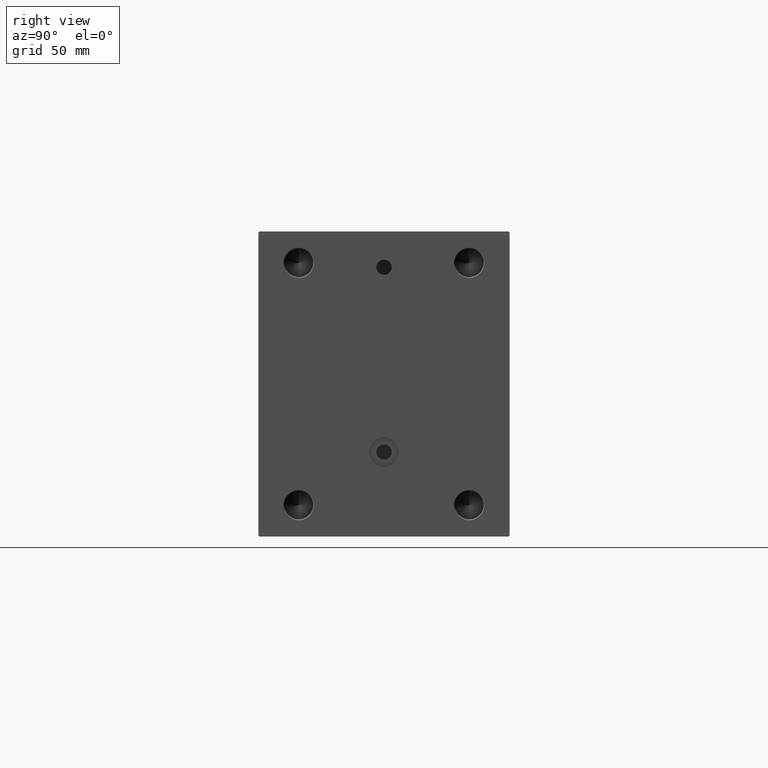
[diagram: clean part render]
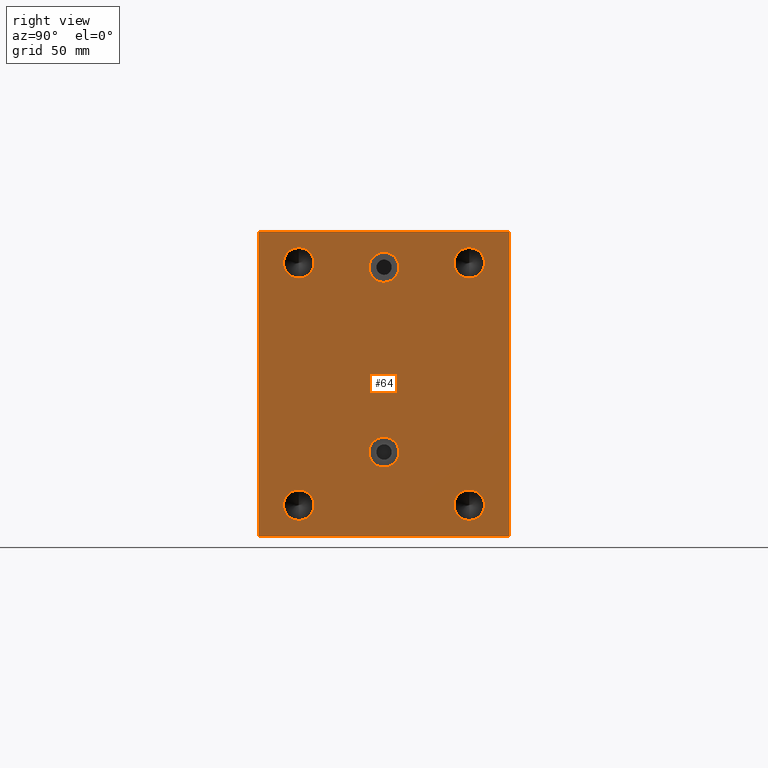
[diagram: same view with one face highlighted and labeled with its STEP entity id]
A machine part, right view. The second image highlights one B-rep face of the part: STEP entity #64.
In plain terms, the highlighted planar face has unit normal (1, 0, 0).
Its self-contained STEP definition (entity closure, byte-faithful):
#64 = ADVANCED_FACE ( 'NONE', ( #10120, #42099, #10347, #28656, #35827, #18213, #27744 ), #21006, .T. ) ;
#184 = CARTESIAN_POINT ( 'NONE',  ( 255.0000000000000000, 77.25000000000099476, -77.24999999999884892 ) ) ;
#747 = CARTESIAN_POINT ( 'NONE',  ( 255.0000000000000000, -47.50000000000000000, 67.49999999999998579 ) ) ;
#1363 = DIRECTION ( 'NONE',  ( 0.000000000000000000, 0.000000000000000000, -1.000000000000000000 ) ) ;
#1552 = CIRCLE ( 'NONE', #22294, 8.500000000000007105 ) ;
#1582 = CARTESIAN_POINT ( 'NONE',  ( 255.0000000000000000, 70.00000000000001421, -84.50000000000002842 ) ) ;
#1793 = EDGE_CURVE ( 'NONE', #21016, #2088, #44489, .T. ) ;
#2088 = VERTEX_POINT ( 'NONE', #10882 ) ;
#2323 = VERTEX_POINT ( 'NONE', #35851 ) ;
#2375 = CIRCLE ( 'NONE', #43066, 8.500000000000007105 ) ;
#2508 = EDGE_CURVE ( 'NONE', #39429, #32883, #26798, .T. ) ;
#2566 = EDGE_CURVE ( 'NONE', #3292, #30460, #1552, .T. ) ;
#2641 = EDGE_CURVE ( 'NONE', #40918, #26775, #20742, .T. ) ;
#3292 = VERTEX_POINT ( 'NONE', #19172 ) ;
#3398 = VERTEX_POINT ( 'NONE', #37466 ) ;
#3608 = DIRECTION ( 'NONE',  ( 0.000000000000000000, -8.163404592832031500E-17, 1.000000000000000000 ) ) ;
#4068 = AXIS2_PLACEMENT_3D ( 'NONE', #42324, #42095, #21690 ) ;
#4218 = EDGE_CURVE ( 'NONE', #11736, #39429, #4321, .T. ) ;
#4234 = DIRECTION ( 'NONE',  ( 0.000000000000000000, 0.000000000000000000, -1.000000000000000000 ) ) ;
#4321 = LINE ( 'NONE', #36522, #22320 ) ;
#4946 = ORIENTED_EDGE ( 'NONE', *, *, #34916, .F. ) ;
#5131 = EDGE_CURVE ( 'NONE', #19459, #7746, #2375, .T. ) ;
#5424 = DIRECTION ( 'NONE',  ( 0.000000000000000000, -1.000000000000000000, -1.982541115402065110E-16 ) ) ;
#5476 = CARTESIAN_POINT ( 'NONE',  ( 255.0000000000000000, -77.25000000000093792, -77.24999999999880629 ) ) ;
#5688 = DIRECTION ( 'NONE',  ( -0.000000000000000000, -0.7071067811865378028, 0.7071067811865573427 ) ) ;
#6447 = CARTESIAN_POINT ( 'NONE',  ( 255.0000000000000000, -1.571475800653548713E-14, 65.00000000000001421 ) ) ;
#6593 = CIRCLE ( 'NONE', #20640, 8.500000000000007105 ) ;
#6636 = LINE ( 'NONE', #44713, #27221 ) ;
#6670 = CARTESIAN_POINT ( 'NONE',  ( 255.0000000000000000, -47.50000000000000000, 75.99999999999998579 ) ) ;
#6904 = DIRECTION ( 'NONE',  ( 1.000000000000000000, -0.000000000000000000, -0.000000000000000000 ) ) ;
#6912 = AXIS2_PLACEMENT_3D ( 'NONE', #43701, #29571, #30014 ) ;
#7258 = AXIS2_PLACEMENT_3D ( 'NONE', #21512, #18038, #41696 ) ;
#7417 = CARTESIAN_POINT ( 'NONE',  ( 255.0000000000000000, 4.653657836759937996E-15, -46.32999999999998408 ) ) ;
#7741 = CARTESIAN_POINT ( 'NONE',  ( 255.0000000000000000, 4.653657836759937996E-15, -37.99999999999997868 ) ) ;
#7743 = EDGE_CURVE ( 'NONE', #30755, #20729, #16496, .T. ) ;
#7746 = VERTEX_POINT ( 'NONE', #12758 ) ;
#7899 = ORIENTED_EDGE ( 'NONE', *, *, #2566, .F. ) ;
#8365 = AXIS2_PLACEMENT_3D ( 'NONE', #45225, #37567, #26691 ) ;
#8462 = AXIS2_PLACEMENT_3D ( 'NONE', #6447, #31706, #28004 ) ;
#8872 = VERTEX_POINT ( 'NONE', #43149 ) ;
#9176 = CARTESIAN_POINT ( 'NONE',  ( 255.0000000000000000, 70.00000000000000000, 84.49999999999997158 ) ) ;
#9364 = LINE ( 'NONE', #34400, #33483 ) ;
#9433 = VECTOR ( 'NONE', #41909, 999.9999999999998863 ) ;
#9471 = CIRCLE ( 'NONE', #7258, 8.500000000000007105 ) ;
#9563 = VERTEX_POINT ( 'NONE', #11677 ) ;
#9941 = LINE ( 'NONE', #184, #9433 ) ;
#10025 = DIRECTION ( 'NONE',  ( 0.000000000000000000, 0.000000000000000000, -1.000000000000000000 ) ) ;
#10120 = FACE_BOUND ( 'NONE', #30591, .T. ) ;
#10154 = CARTESIAN_POINT ( 'NONE',  ( 255.0000000000000000, -47.50000000000000000, -76.00000000000001421 ) ) ;
#10228 = ORIENTED_EDGE ( 'NONE', *, *, #32053, .F. ) ;
#10327 = VERTEX_POINT ( 'NONE', #30324 ) ;
#10347 = FACE_BOUND ( 'NONE', #15527, .T. ) ;
#10882 = CARTESIAN_POINT ( 'NONE',  ( 255.0000000000000000, -47.50000000000000000, -59.00000000000002132 ) ) ;
#10993 = CARTESIAN_POINT ( 'NONE',  ( 255.0000000000000000, 47.50000000000000000, -67.50000000000001421 ) ) ;
#11464 = CIRCLE ( 'NONE', #4068, 8.330000000000003624 ) ;
#11677 = CARTESIAN_POINT ( 'NONE',  ( 255.0000000000000000, -47.50000000000000000, 59.00000000000000000 ) ) ;
#11736 = VERTEX_POINT ( 'NONE', #23985 ) ;
#12100 = ORIENTED_EDGE ( 'NONE', *, *, #13812, .T. ) ;
#12445 = EDGE_CURVE ( 'NONE', #14818, #9563, #23921, .T. ) ;
#12625 = DIRECTION ( 'NONE',  ( -0.000000000000000000, 0.7071067811865376918, -0.7071067811865573427 ) ) ;
#12645 = CIRCLE ( 'NONE', #40076, 8.500000000000007105 ) ;
#12758 = CARTESIAN_POINT ( 'NONE',  ( 255.0000000000000000, 47.50000000000000000, 75.99999999999998579 ) ) ;
#13085 = ORIENTED_EDGE ( 'NONE', *, *, #7743, .F. ) ;
#13633 = CIRCLE ( 'NONE', #8462, 8.330000000000003624 ) ;
#13812 = EDGE_CURVE ( 'NONE', #26775, #10327, #37895, .T. ) ;
#14067 = ORIENTED_EDGE ( 'NONE', *, *, #17282, .F. ) ;
#14239 = CARTESIAN_POINT ( 'NONE',  ( 255.0000000000000000, 47.50000000000000000, 59.00000000000000000 ) ) ;
#14818 = VERTEX_POINT ( 'NONE', #6670 ) ;
#15201 = DIRECTION ( 'NONE',  ( 1.000000000000000000, 0.000000000000000000, 0.000000000000000000 ) ) ;
#15527 = EDGE_LOOP ( 'NONE', ( #33501, #19963 ) ) ;
#15542 = CARTESIAN_POINT ( 'NONE',  ( 255.0000000000000000, 5.673788620449684336E-15, -29.66999999999997328 ) ) ;
#15665 = EDGE_CURVE ( 'NONE', #27073, #3398, #13633, .T. ) ;
#16235 = EDGE_LOOP ( 'NONE', ( #25645, #13085 ) ) ;
#16496 = CIRCLE ( 'NONE', #8365, 8.330000000000003624 ) ;
#16572 = CARTESIAN_POINT ( 'NONE',  ( 255.0000000000000000, 77.25000000000096634, 77.24999999999883471 ) ) ;
#17282 = EDGE_CURVE ( 'NONE', #3398, #27073, #11464, .T. ) ;
#17529 = CARTESIAN_POINT ( 'NONE',  ( 255.0000000000000000, 0.000000000000000000, 0.000000000000000000 ) ) ;
#18038 = DIRECTION ( 'NONE',  ( 1.000000000000000000, -0.000000000000000000, -0.000000000000000000 ) ) ;
#18047 = EDGE_LOOP ( 'NONE', ( #23880, #7899 ) ) ;
#18213 = FACE_BOUND ( 'NONE', #18047, .T. ) ;
#18393 = AXIS2_PLACEMENT_3D ( 'NONE', #7741, #21871, #36003 ) ;
#18901 = DIRECTION ( 'NONE',  ( 0.000000000000000000, 0.000000000000000000, -1.000000000000000000 ) ) ;
#19172 = CARTESIAN_POINT ( 'NONE',  ( 255.0000000000000000, 47.50000000000000000, -76.00000000000001421 ) ) ;
#19459 = VERTEX_POINT ( 'NONE', #14239 ) ;
#19963 = ORIENTED_EDGE ( 'NONE', *, *, #5131, .F. ) ;
#20337 = DIRECTION ( 'NONE',  ( 0.000000000000000000, 0.000000000000000000, -1.000000000000000000 ) ) ;
#20368 = EDGE_CURVE ( 'NONE', #10327, #2323, #30212, .T. ) ;
#20601 = CIRCLE ( 'NONE', #18393, 8.330000000000003624 ) ;
#20640 = AXIS2_PLACEMENT_3D ( 'NONE', #45842, #6904, #20337 ) ;
#20729 = VERTEX_POINT ( 'NONE', #7417 ) ;
#20742 = LINE ( 'NONE', #34888, #34101 ) ;
#21006 = PLANE ( 'NONE',  #28877 ) ;
#21016 = VERTEX_POINT ( 'NONE', #10154 ) ;
#21512 = CARTESIAN_POINT ( 'NONE',  ( 255.0000000000000000, 47.50000000000000000, 67.49999999999998579 ) ) ;
#21690 = DIRECTION ( 'NONE',  ( 0.000000000000000000, 0.000000000000000000, -1.000000000000000000 ) ) ;
#21807 = ORIENTED_EDGE ( 'NONE', *, *, #20368, .T. ) ;
#21871 = DIRECTION ( 'NONE',  ( 1.000000000000000000, 0.000000000000000000, -0.000000000000000000 ) ) ;
#22294 = AXIS2_PLACEMENT_3D ( 'NONE', #42305, #31646, #24701 ) ;
#22320 = VECTOR ( 'NONE', #18901, 1000.000000000000000 ) ;
#22910 = CARTESIAN_POINT ( 'NONE',  ( 255.0000000000000000, -70.00000000000000000, -84.49999999999994316 ) ) ;
#23414 = EDGE_LOOP ( 'NONE', ( #21807, #26425, #26420, #45418, #32083, #45019, #29354, #12100 ) ) ;
#23870 = EDGE_CURVE ( 'NONE', #2323, #11736, #6636, .T. ) ;
#23880 = ORIENTED_EDGE ( 'NONE', *, *, #41617, .F. ) ;
#23921 = CIRCLE ( 'NONE', #6912, 8.500000000000007105 ) ;
#23985 = CARTESIAN_POINT ( 'NONE',  ( 255.0000000000000000, -70.00000000000000000, 84.49999999999998579 ) ) ;
#24701 = DIRECTION ( 'NONE',  ( 0.000000000000000000, 0.000000000000000000, -1.000000000000000000 ) ) ;
#24718 = VECTOR ( 'NONE', #5688, 1000.000000000000000 ) ;
#25140 = DIRECTION ( 'NONE',  ( 1.000000000000000000, -0.000000000000000000, -0.000000000000000000 ) ) ;
#25645 = ORIENTED_EDGE ( 'NONE', *, *, #31371, .F. ) ;
#26420 = ORIENTED_EDGE ( 'NONE', *, *, #4218, .T. ) ;
#26425 = ORIENTED_EDGE ( 'NONE', *, *, #23870, .T. ) ;
#26691 = DIRECTION ( 'NONE',  ( 0.000000000000000000, 0.000000000000000000, 1.000000000000000000 ) ) ;
#26723 = AXIS2_PLACEMENT_3D ( 'NONE', #27654, #41778, #10025 ) ;
#26775 = VERTEX_POINT ( 'NONE', #9176 ) ;
#26798 = LINE ( 'NONE', #5476, #29672 ) ;
#27073 = VERTEX_POINT ( 'NONE', #41098 ) ;
#27102 = DIRECTION ( 'NONE',  ( 0.000000000000000000, -0.7071067811865672237, -0.7071067811865279218 ) ) ;
#27221 = VECTOR ( 'NONE', #27102, 1000.000000000000000 ) ;
#27654 = CARTESIAN_POINT ( 'NONE',  ( 255.0000000000000000, -47.50000000000000000, -67.50000000000001421 ) ) ;
#27698 = CARTESIAN_POINT ( 'NONE',  ( 255.0000000000000000, 47.50000000000000000, -59.00000000000002132 ) ) ;
#27744 = FACE_OUTER_BOUND ( 'NONE', #23414, .T. ) ;
#28004 = DIRECTION ( 'NONE',  ( 0.000000000000000000, 0.000000000000000000, -1.000000000000000000 ) ) ;
#28656 = FACE_BOUND ( 'NONE', #40074, .T. ) ;
#28697 = EDGE_CURVE ( 'NONE', #8872, #40918, #9941, .T. ) ;
#28862 = CIRCLE ( 'NONE', #31073, 8.500000000000007105 ) ;
#28877 = AXIS2_PLACEMENT_3D ( 'NONE', #17529, #15201, #39767 ) ;
#29354 = ORIENTED_EDGE ( 'NONE', *, *, #2641, .T. ) ;
#29571 = DIRECTION ( 'NONE',  ( 1.000000000000000000, -0.000000000000000000, -0.000000000000000000 ) ) ;
#29672 = VECTOR ( 'NONE', #12625, 1000.000000000000114 ) ;
#29679 = EDGE_CURVE ( 'NONE', #7746, #19459, #9471, .T. ) ;
#30014 = DIRECTION ( 'NONE',  ( 0.000000000000000000, 0.000000000000000000, -1.000000000000000000 ) ) ;
#30212 = LINE ( 'NONE', #40642, #41171 ) ;
#30324 = CARTESIAN_POINT ( 'NONE',  ( 255.0000000000000000, 69.49999999999997158, 85.00000000000001421 ) ) ;
#30460 = VERTEX_POINT ( 'NONE', #27698 ) ;
#30591 = EDGE_LOOP ( 'NONE', ( #14067, #34469 ) ) ;
#30755 = VERTEX_POINT ( 'NONE', #15542 ) ;
#30924 = DIRECTION ( 'NONE',  ( 0.000000000000000000, 1.000000000000000000, 0.000000000000000000 ) ) ;
#31073 = AXIS2_PLACEMENT_3D ( 'NONE', #747, #39229, #4234 ) ;
#31212 = ORIENTED_EDGE ( 'NONE', *, *, #12445, .F. ) ;
#31371 = EDGE_CURVE ( 'NONE', #20729, #30755, #20601, .T. ) ;
#31646 = DIRECTION ( 'NONE',  ( 1.000000000000000000, -0.000000000000000000, -0.000000000000000000 ) ) ;
#31706 = DIRECTION ( 'NONE',  ( 1.000000000000000000, 0.000000000000000000, 0.000000000000000000 ) ) ;
#32053 = EDGE_CURVE ( 'NONE', #2088, #21016, #6593, .T. ) ;
#32083 = ORIENTED_EDGE ( 'NONE', *, *, #45869, .T. ) ;
#32883 = VERTEX_POINT ( 'NONE', #36826 ) ;
#33483 = VECTOR ( 'NONE', #30924, 1000.000000000000000 ) ;
#33501 = ORIENTED_EDGE ( 'NONE', *, *, #29679, .F. ) ;
#34101 = VECTOR ( 'NONE', #3608, 1000.000000000000000 ) ;
#34400 = CARTESIAN_POINT ( 'NONE',  ( 255.0000000000000000, -70.00000000000000000, -85.00000000000000000 ) ) ;
#34469 = ORIENTED_EDGE ( 'NONE', *, *, #15665, .F. ) ;
#34888 = CARTESIAN_POINT ( 'NONE',  ( 255.0000000000000000, 70.00000000000001421, -85.00000000000000000 ) ) ;
#34916 = EDGE_CURVE ( 'NONE', #9563, #14818, #28862, .T. ) ;
#35659 = EDGE_LOOP ( 'NONE', ( #10228, #42299 ) ) ;
#35827 = FACE_BOUND ( 'NONE', #35659, .T. ) ;
#35851 = CARTESIAN_POINT ( 'NONE',  ( 255.0000000000000000, -69.49999999999997158, 84.99999999999998579 ) ) ;
#36003 = DIRECTION ( 'NONE',  ( 0.000000000000000000, 0.000000000000000000, 1.000000000000000000 ) ) ;
#36522 = CARTESIAN_POINT ( 'NONE',  ( 255.0000000000000000, -70.00000000000000000, 84.99999999999998579 ) ) ;
#36812 = CARTESIAN_POINT ( 'NONE',  ( 255.0000000000000000, 47.50000000000000000, 67.49999999999998579 ) ) ;
#36826 = CARTESIAN_POINT ( 'NONE',  ( 255.0000000000000000, -69.49999999999995737, -85.00000000000000000 ) ) ;
#37466 = CARTESIAN_POINT ( 'NONE',  ( 255.0000000000000000, -1.571475800653548713E-14, 56.67000000000000881 ) ) ;
#37567 = DIRECTION ( 'NONE',  ( 1.000000000000000000, 0.000000000000000000, -0.000000000000000000 ) ) ;
#37895 = LINE ( 'NONE', #16572, #24718 ) ;
#39229 = DIRECTION ( 'NONE',  ( 1.000000000000000000, -0.000000000000000000, -0.000000000000000000 ) ) ;
#39269 = DIRECTION ( 'NONE',  ( 0.000000000000000000, 0.000000000000000000, -1.000000000000000000 ) ) ;
#39429 = VERTEX_POINT ( 'NONE', #22910 ) ;
#39767 = DIRECTION ( 'NONE',  ( 0.000000000000000000, 0.000000000000000000, -1.000000000000000000 ) ) ;
#40074 = EDGE_LOOP ( 'NONE', ( #31212, #4946 ) ) ;
#40076 = AXIS2_PLACEMENT_3D ( 'NONE', #10993, #25140, #39269 ) ;
#40642 = CARTESIAN_POINT ( 'NONE',  ( 255.0000000000000000, 70.00000000000000000, 85.00000000000001421 ) ) ;
#40918 = VERTEX_POINT ( 'NONE', #1582 ) ;
#41098 = CARTESIAN_POINT ( 'NONE',  ( 255.0000000000000000, -1.469462722284573843E-14, 73.33000000000002672 ) ) ;
#41171 = VECTOR ( 'NONE', #5424, 1000.000000000000000 ) ;
#41617 = EDGE_CURVE ( 'NONE', #30460, #3292, #12645, .T. ) ;
#41696 = DIRECTION ( 'NONE',  ( 0.000000000000000000, 0.000000000000000000, -1.000000000000000000 ) ) ;
#41778 = DIRECTION ( 'NONE',  ( 1.000000000000000000, -0.000000000000000000, -0.000000000000000000 ) ) ;
#41909 = DIRECTION ( 'NONE',  ( -0.000000000000000000, 0.7071067811865376918, 0.7071067811865574537 ) ) ;
#42095 = DIRECTION ( 'NONE',  ( 1.000000000000000000, 0.000000000000000000, 0.000000000000000000 ) ) ;
#42099 = FACE_BOUND ( 'NONE', #16235, .T. ) ;
#42299 = ORIENTED_EDGE ( 'NONE', *, *, #1793, .F. ) ;
#42305 = CARTESIAN_POINT ( 'NONE',  ( 255.0000000000000000, 47.50000000000000000, -67.50000000000001421 ) ) ;
#42324 = CARTESIAN_POINT ( 'NONE',  ( 255.0000000000000000, -1.571475800653548713E-14, 65.00000000000001421 ) ) ;
#43066 = AXIS2_PLACEMENT_3D ( 'NONE', #36812, #43540, #1363 ) ;
#43149 = CARTESIAN_POINT ( 'NONE',  ( 255.0000000000000000, 69.50000000000005684, -85.00000000000000000 ) ) ;
#43540 = DIRECTION ( 'NONE',  ( 1.000000000000000000, -0.000000000000000000, -0.000000000000000000 ) ) ;
#43701 = CARTESIAN_POINT ( 'NONE',  ( 255.0000000000000000, -47.50000000000000000, 67.49999999999998579 ) ) ;
#44489 = CIRCLE ( 'NONE', #26723, 8.500000000000007105 ) ;
#44713 = CARTESIAN_POINT ( 'NONE',  ( 255.0000000000000000, -77.24999999999803890, 77.25000000000234479 ) ) ;
#45019 = ORIENTED_EDGE ( 'NONE', *, *, #28697, .T. ) ;
#45225 = CARTESIAN_POINT ( 'NONE',  ( 255.0000000000000000, 4.653657836759937996E-15, -37.99999999999997868 ) ) ;
#45418 = ORIENTED_EDGE ( 'NONE', *, *, #2508, .T. ) ;
#45842 = CARTESIAN_POINT ( 'NONE',  ( 255.0000000000000000, -47.50000000000000000, -67.50000000000001421 ) ) ;
#45869 = EDGE_CURVE ( 'NONE', #32883, #8872, #9364, .T. ) ;